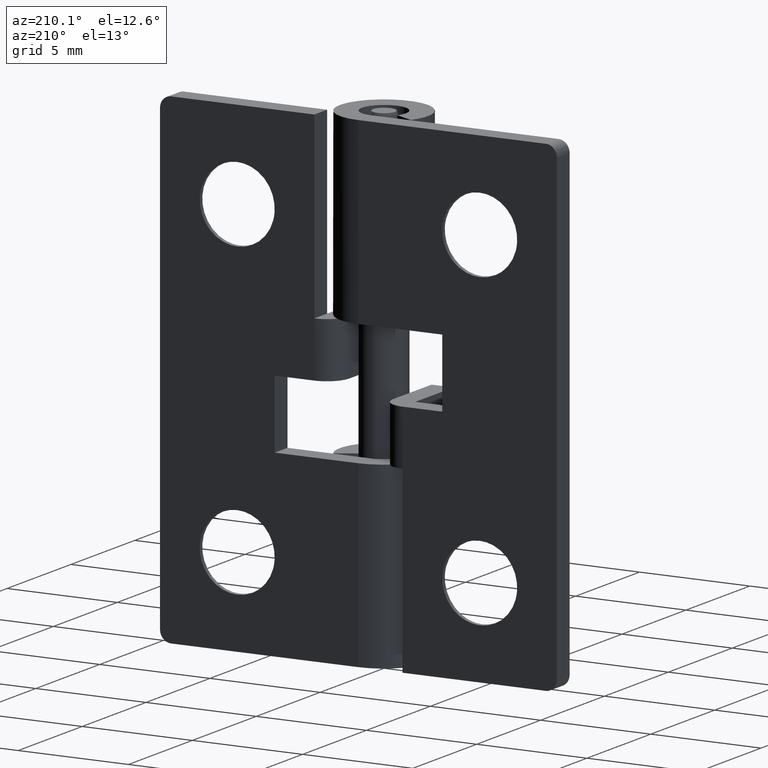
[diagram: clean part render]
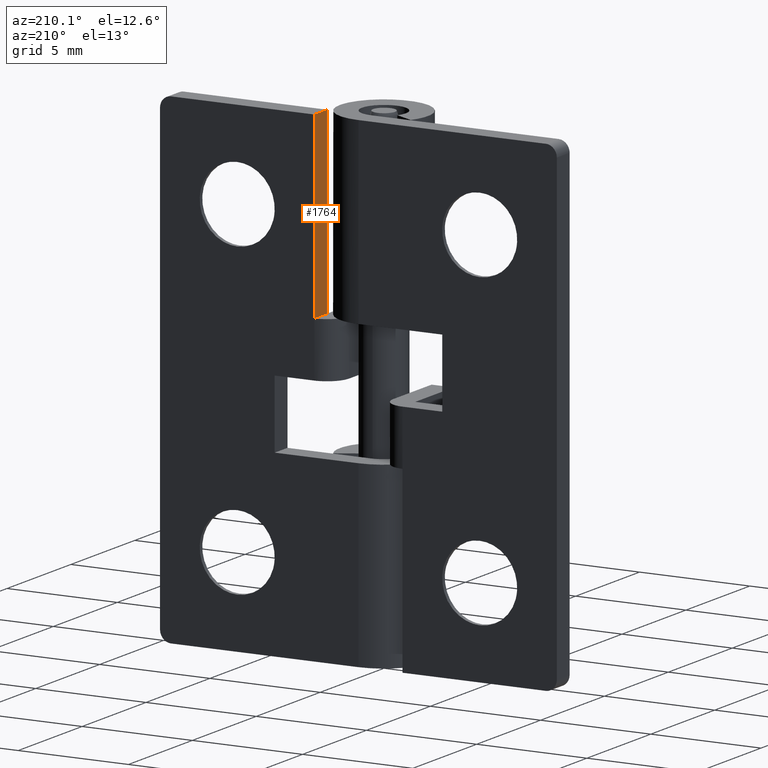
[diagram: same view with one face highlighted and labeled with its STEP entity id]
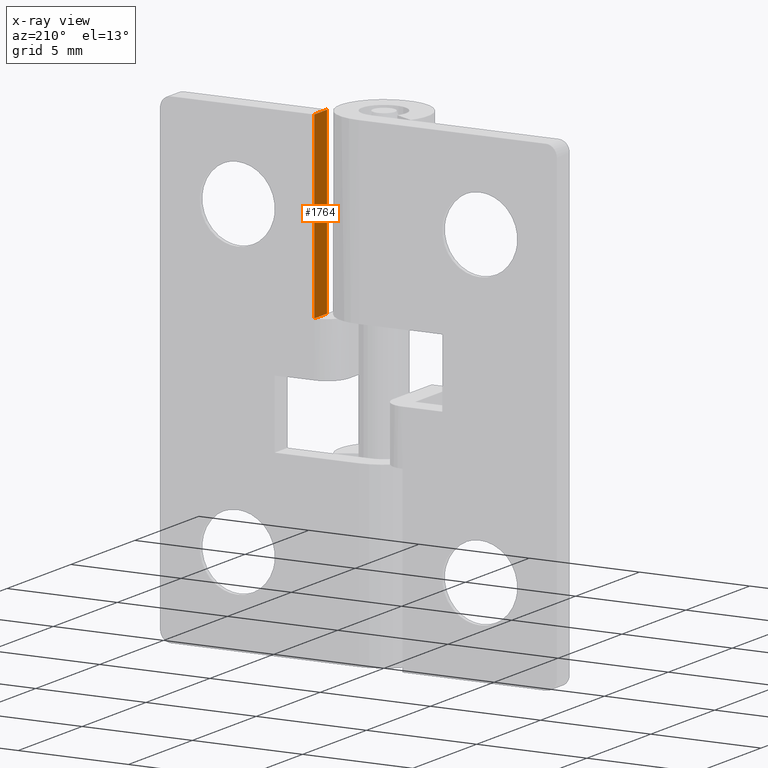
[diagram: x-ray of the same camera — body ghosted, the highlighted face saturated]
A machine part, auxiliary view. The second image highlights one B-rep face of the part: STEP entity #1764.
The next image is the same camera in x-ray: the body ghosted, the highlighted face saturated — about 0% of this face is hidden behind the body in this view.
In plain terms, the highlighted face is a freeform B-spline surface patch.
Its self-contained STEP definition (entity closure, byte-faithful):
#1021=CARTESIAN_POINT('',(2.0,2.0,13.799994999999999));
#1022=VERTEX_POINT('',#1021);
#1129=CARTESIAN_POINT('',(2.0,1.0,13.799994999999960));
#1130=VERTEX_POINT('',#1129);
#1131=CARTESIAN_POINT('',(2.0,1.0,13.799994999999960));
#1132=CARTESIAN_POINT('',(2.0,2.0,13.799994999999999));
#1133=QUASI_UNIFORM_CURVE('',1,(#1131,#1132),.UNSPECIFIED.,.F.,.U.);
#1134=EDGE_CURVE('',#1130,#1022,#1133,.T.);
#1455=CARTESIAN_POINT('',(2.0,1.0,22.0));
#1456=VERTEX_POINT('',#1455);
#1457=CARTESIAN_POINT('',(2.0,2.0,22.0));
#1458=VERTEX_POINT('',#1457);
#1459=CARTESIAN_POINT('',(2.0,1.0,22.0));
#1460=CARTESIAN_POINT('',(2.0,2.0,22.0));
#1461=QUASI_UNIFORM_CURVE('',1,(#1459,#1460),.UNSPECIFIED.,.F.,.U.);
#1462=EDGE_CURVE('',#1456,#1458,#1461,.T.);
#1680=CARTESIAN_POINT('',(2.0,1.0,22.0));
#1681=CARTESIAN_POINT('',(2.0,1.0,13.799994999999960));
#1682=QUASI_UNIFORM_CURVE('',1,(#1680,#1681),.UNSPECIFIED.,.F.,.U.);
#1683=EDGE_CURVE('',#1456,#1130,#1682,.T.);
#1725=CARTESIAN_POINT('',(2.0,2.0,22.0));
#1726=CARTESIAN_POINT('',(2.0,2.0,13.799994999999999));
#1727=QUASI_UNIFORM_CURVE('',1,(#1725,#1726),.UNSPECIFIED.,.F.,.U.);
#1728=EDGE_CURVE('',#1458,#1022,#1727,.T.);
#1753=CARTESIAN_POINT('',(2.0,0.950050001938194,22.409590233856800));
#1754=CARTESIAN_POINT('',(2.0,0.950050001938194,13.390404546201880));
#1755=CARTESIAN_POINT('',(2.0,2.049950024883896,22.409590233856800));
#1756=CARTESIAN_POINT('',(2.0,2.049950024883896,13.390404546201880));
#1757=B_SPLINE_SURFACE_WITH_KNOTS('',1,1,((#1753,#1755),(#1754,#1756)),.UNSPECIFIED.,.F.,.F.,.U.,(2,2),(2,2),(0.0,9.019185687654916),(0.041708334948495,0.958291687403247),.UNSPECIFIED.);
#1758=ORIENTED_EDGE('',*,*,#1134,.F.);
#1759=ORIENTED_EDGE('',*,*,#1683,.F.);
#1760=ORIENTED_EDGE('',*,*,#1462,.T.);
#1761=ORIENTED_EDGE('',*,*,#1728,.T.);
#1762=EDGE_LOOP('',(#1758,#1759,#1760,#1761));
#1763=FACE_OUTER_BOUND('',#1762,.T.);
#1764=ADVANCED_FACE('',(#1763),#1757,.F.);